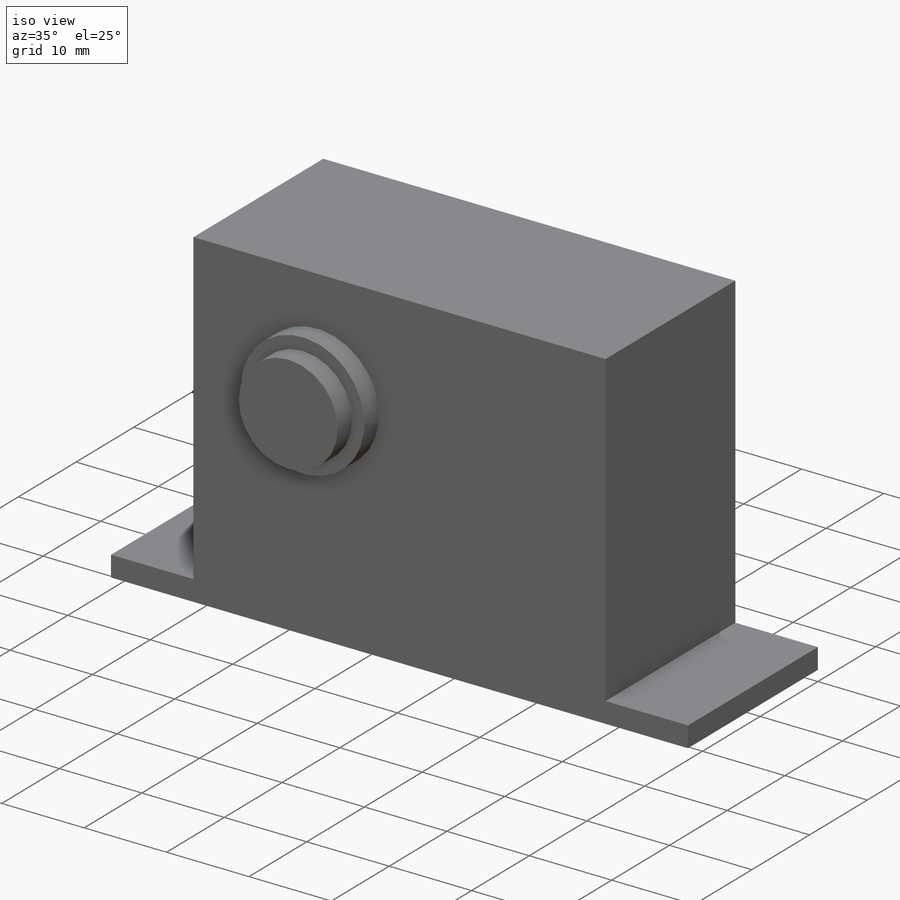
[diagram: iso view]
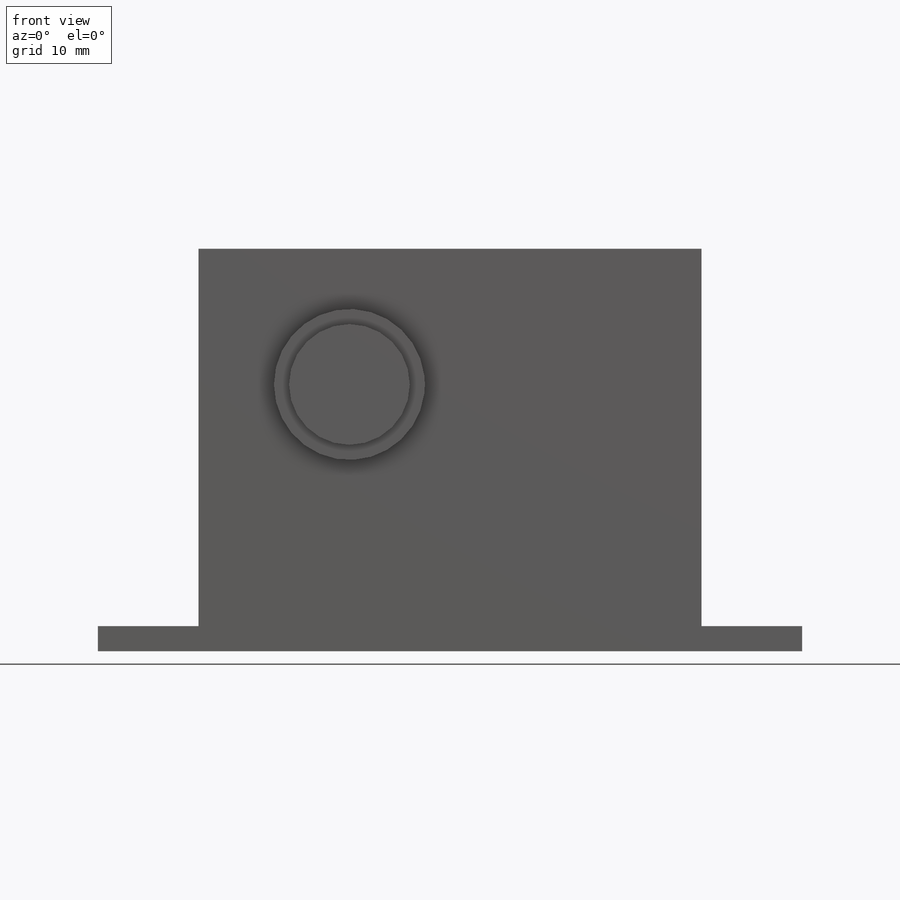
[diagram: front view]
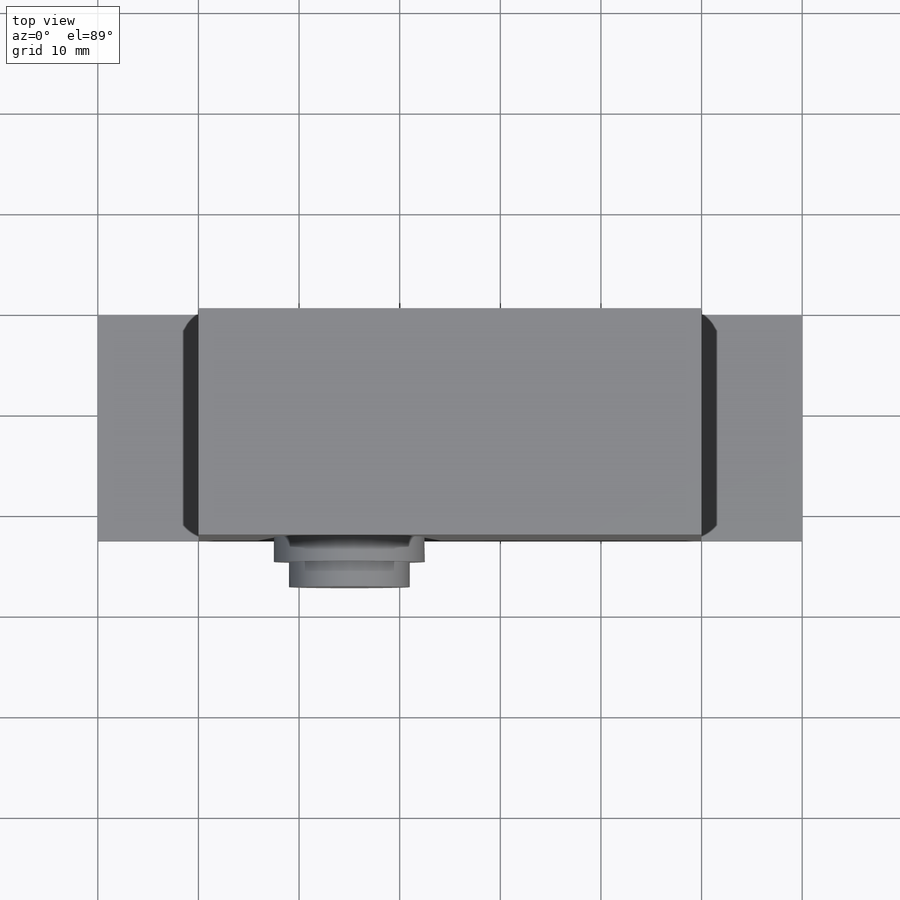
[diagram: top view]
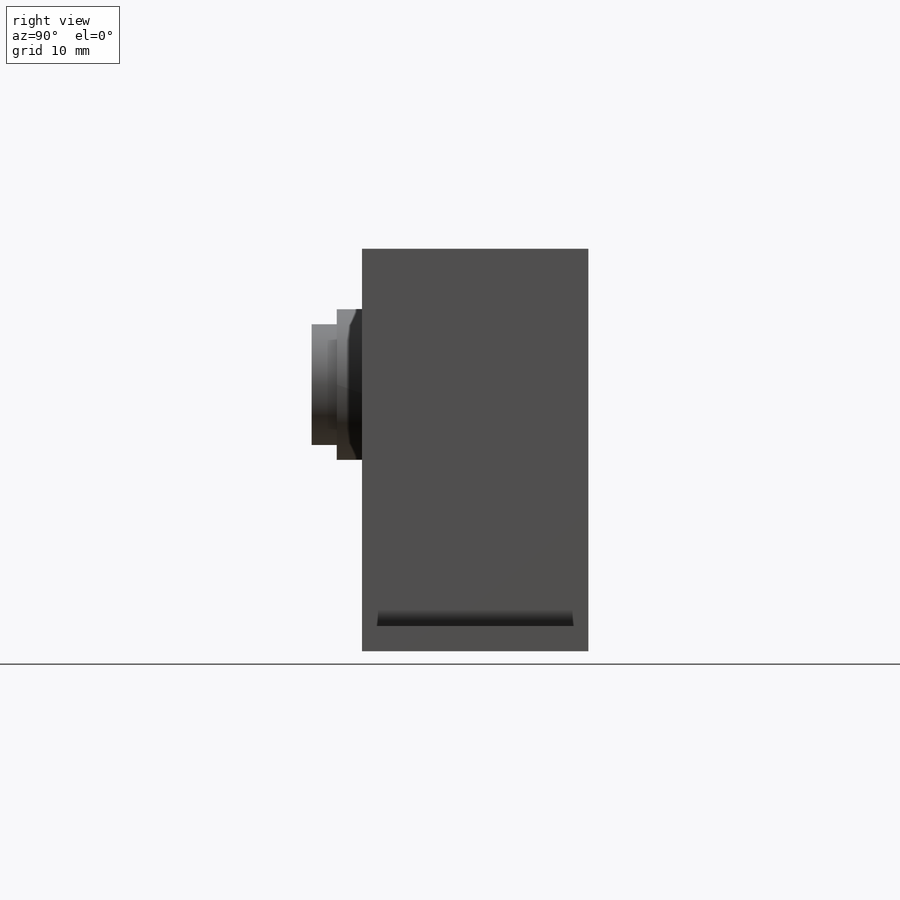
[diagram: right view]
SOLIDWORKS PART (.sldprt)
format: sldprt  version: not decoded by parser v0  size: 176,128 bytes
history: native  units: mm
features: sketch x5, extrude x3, cut_extrude x2, material x1 (+12 scaffold rows collapsed)
feature tree (23):
  scaffold x12  (default folders/planes/origin — collapsed)
  material  "Material <not specified>"
  sketch  "Sketch1"  dims[c1.D3=~1.077669mm c1.D1=~26.895896mm c1.D2=~41.500003mm c2.D1=40.0mm c2.D2=70.0mm]
  extrude  "Boss-Extrude1"  Depth=22.5mm
  sketch  "Sketch2"  dims[c1.D1=~14.752731mm c1.D3=15.0mm c2.D1=26.5mm c2.D2=45.0mm]
  extrude  "Boss-Extrude2"  Depth=2.5mm
  sketch  "Sketch3"  dims[D1=12.0mm]
  extrude  "Boss-Extrude3"  Depth=2.5mm
  sketch  "Sketch4"  dims[c1.D1=~31.755605mm c1.D2=20.0mm c2.D1=2.5mm c2.D2=33.0mm]
  cut_extrude  "Cut-Extrude1"  Depth=10mm
  sketch  "Sketch5"
  cut_extrude  "Cut-Extrude2"  Depth=10mm
decode coverage: 9 of 10 modeling features carry decoded parameters
note: ~ marks probable driven/reference dimensions
note: suppression state not decoded; provenance and decode notes live in map.json
